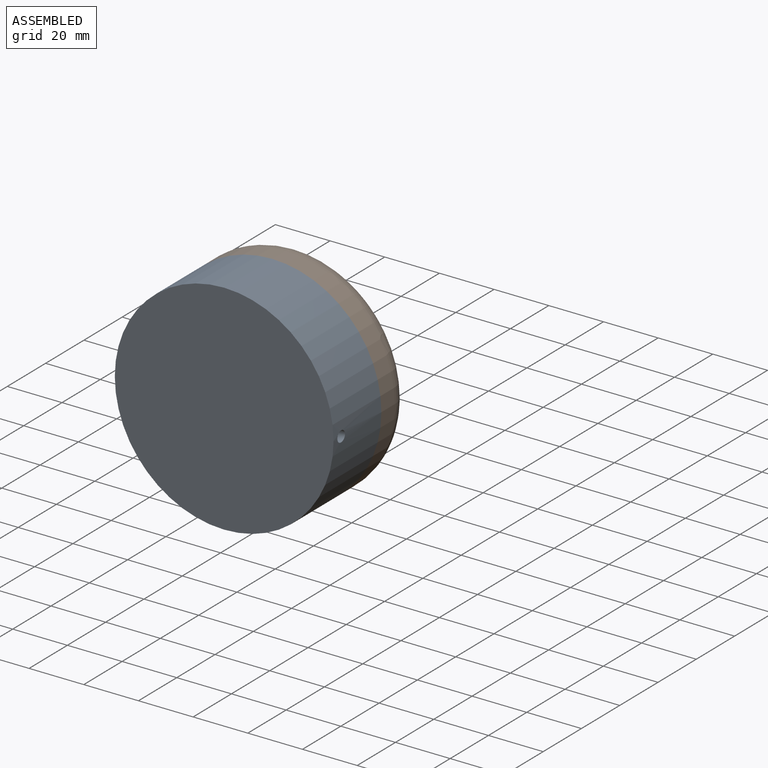
[diagram: assembled view]
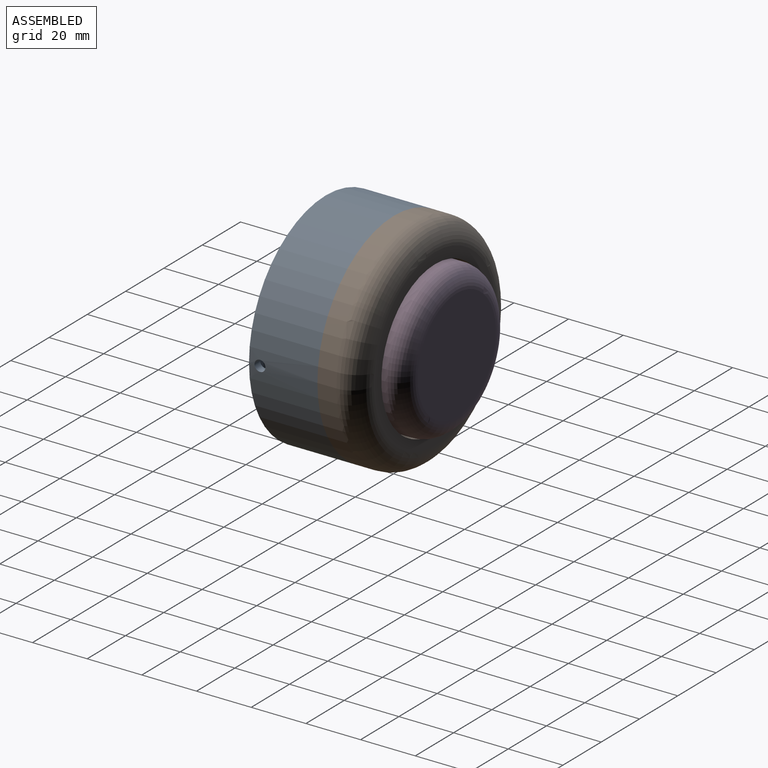
[diagram: assembled view, second angle]
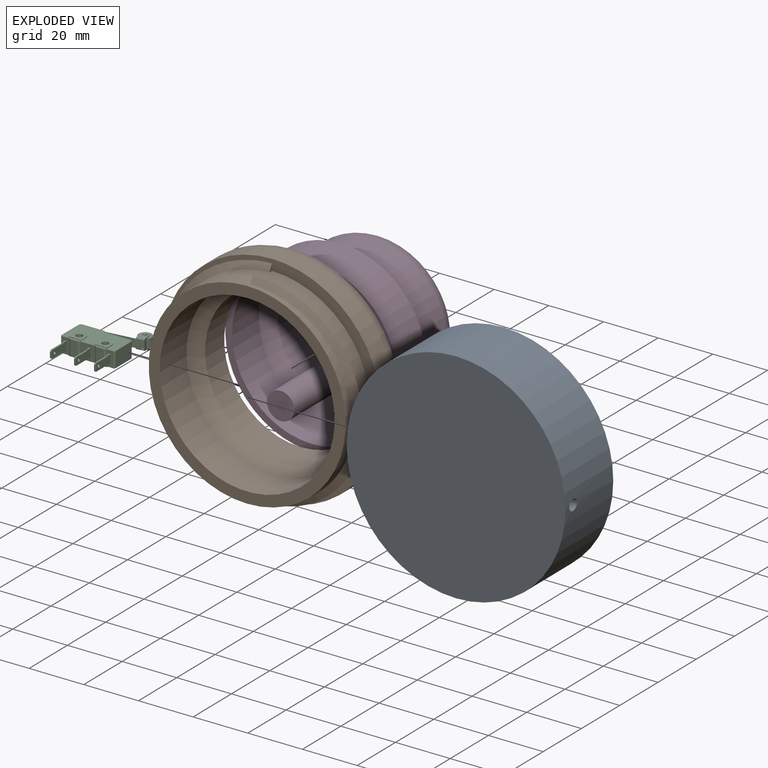
[diagram: exploded view]
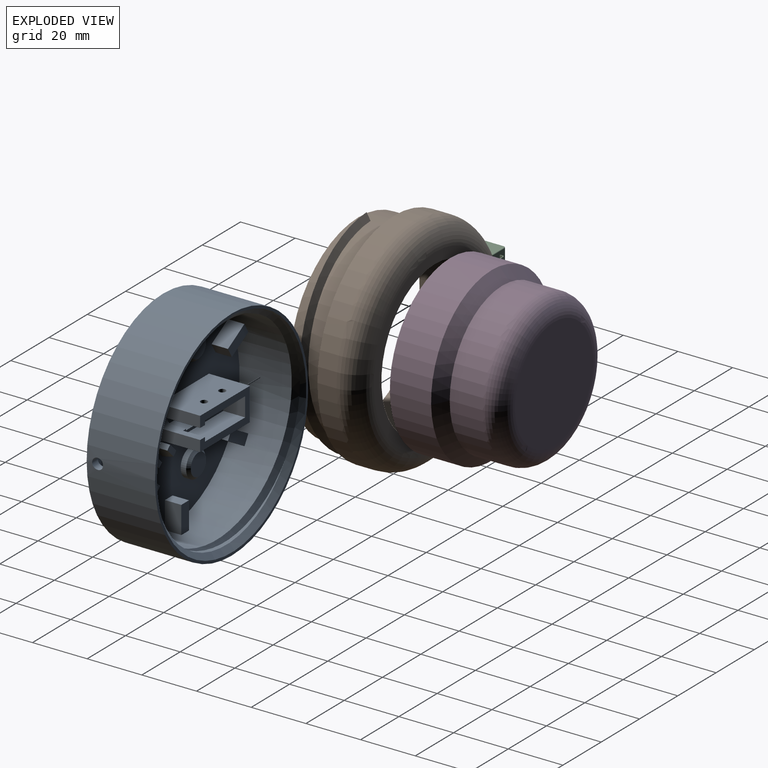
[diagram: exploded view, second angle]
ASSEMBLY  parts=4 mates=5
PART A: 83 faces, bbox 80x80x27.2 mm
  f0: plane 74x73.89mm, normal (0,0,1), area 3465.7mm2, adj f1,f6,f7,f13,f14,f15,f34,f35
  f1: cylinder r=37mm len=74mm, axis (0,0,1), area 3688.9mm2, adj f0,f2,f24,f27,f28,f32,f48,f49
  f2: cylinder r=37mm len=74mm, axis (0,0,1), area 500.2mm2, adj f1,f26,f28
  f3: cylinder r=40mm len=80mm, axis (0,0,-1), area 6270.5mm2, adj f11,f12,f32
  f4: plane 21x7mm, normal (0,0,1), area 51mm2, adj f8,f9,f10,f16,f17,f18,f19,f21
  f5: plane 26x12mm, normal (0,0,1), area 155mm2, adj f6,f7,f8,f13,f14,f15,f16,f17
  f6: plane 15x6mm, normal (0,1,0), area 60.9mm2, adj f0,f5,f14,f29,f31
  f7: plane 15x6mm, normal (0,1,0), area 60.9mm2, adj f0,f5,f13,f29,f30
  f8: plane 8x1.5mm, normal (0,-1,0), area 12mm2, adj f4,f5,f17,f30
  f9: plane 7x2.5mm, normal (0,-1,0), area 4.4mm2, adj f4,f20,f22,f29,f31
  f10: plane 7x2.5mm, normal (0,-1,0), area 4.4mm2, adj f4,f20,f21,f29,f30
  f11: plane 80.04x80.04mm, normal (0,0,1), area 246.4mm2, adj f3,f25,f26,f28
  f12: plane 80x80mm, normal (0,0,-1), area 5026.5mm2, adj f3
  f13: plane 26x15mm, normal (1,0,0), area 380.2mm2, adj f0,f5,f7,f15,f72,f73
  f14: plane 26x15mm, normal (-1,0,0), area 390mm2, adj f0,f5,f6,f15
  f15: plane 15x12mm, normal (0,-1,0), area 180mm2, adj f0,f5,f13,f14
  f16: plane 8x7mm, normal (0,1,0), area 56mm2, adj f4,f5,f17,f19
  f17: plane 21x8mm, normal (-1,0,0), area 158.2mm2, adj f4,f5,f8,f16,f72,f73
  f18: plane 8x1.5mm, normal (0,-1,0), area 12mm2, adj f4,f5,f19,f31
  f19: plane 21x8mm, normal (1,0,0), area 168mm2, adj f4,f5,f16,f18
  f20: plane 18x5mm, normal (0,0,1), area 90mm2, adj f9,f10,f21,f22,f23
  f21: plane 18x7mm, normal (-1,0,0), area 126mm2, adj f4,f10,f20,f23
  f22: plane 18x7mm, normal (1,0,0), area 126mm2, adj f4,f9,f20,f23
  f23: plane 7x5mm, normal (0,1,0), area 35mm2, adj f4,f20,f21,f22
  f24: plane 2.89x2.5mm, normal (0,1,0), area 3.6mm2, adj f1,f26,f27
  f25: plane 1.18x0.68mm, normal (0,-1,0), area 0.2mm2, adj f11,f27,f28
  f26: bspline ~79x79mm, area 590.3mm2, adj f2,f11,f24,f27,f28
  f27: bspline ~79x79mm, area 684.4mm2, adj f1,f24,f25,f26,f28
  f28: cone r=37mm half-angle=45deg, axis (0,0,1), area 562.5mm2, adj f1,f2,f11,f25,f26,f27
  f29: cylinder r=2mm len=4mm, axis (0,1,0), area 25.1mm2, adj f6,f7,f9,f10,f30,f31
  f30: plane 13x4mm, normal (-1,0,0), area 40mm2, adj f4,f5,f7,f8,f10,f29
  f31: plane 13x4mm, normal (1,0,0), area 40mm2, adj f4,f5,f6,f9,f18,f29
  f32: cylinder r=2mm len=4mm, axis (0,-1,0), area 37.4mm2, adj f1,f3
  f33: plane 4.62x4.62mm, normal (0,0,1), area 9.1mm2, adj f34,f35,f36,f37
  f34: plane 6x5.66mm, normal (0.71,-0.71,0), area 37.6mm2, adj f0,f33,f36,f37
  f35: plane 6x5.66mm, normal (-0.71,0.71,0), area 37.6mm2, adj f0,f33,f36,f37
  f36: plane 6x1.41mm, normal (0.71,0.71,0), area 12mm2, adj f0,f33,f34,f35
  f37: plane 6x3.86mm, normal (-0.61,-0.61,0.5), area 13.9mm2, adj f0,f33,f34,f35
  f38: plane 4.62x4.62mm, normal (0,0,1), area 9.1mm2, adj f39,f40,f41,f42
  f39: plane 6x1.41mm, normal (-0.71,-0.71,0), area 12mm2, adj f0,f38,f40,f41
  f40: plane 6x5.66mm, normal (-0.71,0.71,0), area 37.6mm2, adj f0,f38,f39,f42
  f41: plane 6x5.66mm, normal (0.71,-0.71,0), area 37.6mm2, adj f0,f38,f39,f42
  f42: plane 6x3.86mm, normal (0.61,0.61,0.5), area 13.9mm2, adj f0,f38,f40,f41
  f43: plane 4.62x4.62mm, normal (0,0,1), area 9.1mm2, adj f44,f45,f46,f47
  f44: plane 6x1.41mm, normal (0.71,0.71,0), area 12mm2, adj f0,f43,f45,f46
  f45: plane 6x5.66mm, normal (0.71,-0.71,0), area 37.6mm2, adj f0,f43,f44,f47
  f46: plane 6x5.66mm, normal (-0.71,0.71,0), area 37.6mm2, adj f0,f43,f44,f47
  f47: plane 6x3.86mm, normal (-0.61,-0.61,0.5), area 13.9mm2, adj f0,f43,f45,f46
  f48: plane 9.95x6mm, normal (0,-1,0), area 59.7mm2, adj f0,f1,f50,f51
  f49: plane 9.95x6mm, normal (0,1,0), area 59.7mm2, adj f0,f1,f50,f51
  f50: plane 6x4mm, normal (1,0,0), area 24mm2, adj f0,f48,f49,f51
  f51: plane 10x4mm, normal (0,0,1), area 39.9mm2, adj f1,f48,f49,f50
  f52: plane 8.61x6mm, normal (0.87,-0.5,0), area 59.7mm2, adj f0,f1,f54,f55
  f53: plane 8.61x6mm, normal (-0.87,0.5,0), area 59.7mm2, adj f0,f1,f54,f55
  f54: plane 6x3.46mm, normal (0.5,0.87,0), area 24mm2, adj f0,f52,f53,f55
  f55: plane 10.61x8.44mm, normal (0,0,1), area 39.9mm2, adj f1,f52,f53,f54
  f56: plane 8.61x6mm, normal (0.87,0.5,0), area 59.7mm2, adj f0,f1,f58,f59
  f57: plane 8.61x6mm, normal (-0.87,-0.5,0), area 59.7mm2, adj f0,f1,f58,f59
  f58: plane 6x3.46mm, normal (-0.5,0.87,0), area 24mm2, adj f0,f56,f57,f59
  f59: plane 10.61x8.44mm, normal (0,0,1), area 39.9mm2, adj f1,f56,f57,f58
  f60: plane 9.95x6mm, normal (0,1,0), area 59.7mm2, adj f0,f1,f62,f63
  f61: plane 9.95x6mm, normal (0,-1,0), area 59.7mm2, adj f0,f1,f62,f63
  f62: plane 6x4mm, normal (-1,0,0), area 24mm2, adj f0,f60,f61,f63
  f63: plane 10x4mm, normal (0,0,1), area 39.9mm2, adj f1,f60,f61,f62
  f64: plane 8.61x6mm, normal (-0.87,0.5,0), area 59.7mm2, adj f0,f1,f66,f67
  f65: plane 8.61x6mm, normal (0.87,-0.5,0), area 59.7mm2, adj f0,f1,f66,f67
  f66: plane 6x3.46mm, normal (-0.5,-0.87,0), area 24mm2, adj f0,f64,f65,f67
  f67: plane 10.61x8.44mm, normal (0,0,1), area 39.9mm2, adj f1,f64,f65,f66
  f68: plane 8.61x6mm, normal (-0.87,-0.5,0), area 59.7mm2, adj f0,f1,f70,f71
  f69: plane 8.61x6mm, normal (0.87,0.5,0), area 59.7mm2, adj f0,f1,f70,f71
  f70: plane 6x3.46mm, normal (0.5,-0.87,0), area 24mm2, adj f0,f68,f69,f71
  f71: plane 10.61x8.44mm, normal (0,0,1), area 39.9mm2, adj f1,f68,f69,f70
  f72: cylinder r=1.25mm len=2.5mm, axis (1,0,0), area 19.6mm2, adj f13,f17
  f73: cylinder r=1.25mm len=2.5mm, axis (1,0,0), area 19.6mm2, adj f13,f17
  f74: cylinder r=5mm len=10mm, axis (0,0,-1), area 62.8mm2, adj f0,f80
  f75: plane 8x8mm, normal (0,0,1), area 50.3mm2, adj f80
  f76: cylinder r=5mm len=10mm, axis (0,0,-1), area 62.8mm2, adj f0,f81
  f77: plane 8x8mm, normal (0,0,1), area 50.3mm2, adj f81
  f78: cylinder r=5mm len=10mm, axis (0,0,-1), area 62.8mm2, adj f0,f82
  f79: plane 8x8mm, normal (0,0,1), area 50.3mm2, adj f82
  f80: cone r=4mm half-angle=45deg, axis (0,0,-1), area 40mm2, adj f74,f75
  f81: cone r=4mm half-angle=45deg, axis (0,0,-1), area 40mm2, adj f76,f77
  f82: cone r=4mm half-angle=45deg, axis (0,0,-1), area 40mm2, adj f78,f79
PART B: 14 faces, bbox 87.3x87.3x28.7 mm
  f0: plane 80.74x80.74mm, normal (0,0,-1), area 913.3mm2, adj f2,f3,f10,f11
  f1: cylinder r=36mm len=72mm, axis (0,0,1), area 1483.1mm2, adj f2,f9,f12,f13
  f2: cylinder r=36mm len=72mm, axis (0,0,1), area 827.5mm2, adj f0,f1,f10,f11
  f3: cylinder r=40mm len=80mm, axis (0,0,-1), area 1759.3mm2, adj f0,f5
  f4: plane 64x64mm, normal (0,0,1), area 754mm2, adj f5,f7
  f5: torus R=32mm, axis (0,0,1), area 2928.7mm2, adj f3,f4
  f6: cylinder r=32mm len=64mm, axis (0,0,1), area 2814.9mm2, adj f8,f9
  f7: cylinder r=28mm len=56mm, axis (0,0,1), area 1759.3mm2, adj f4,f8
  f8: cone r=28mm half-angle=45deg, axis (0,0,-1), area 1066.3mm2, adj f6,f7
  f9: plane 72x72mm, normal (0,0,-1), area 854.5mm2, adj f1,f6
  f10: plane 2.5x1.44mm, normal (0,1,0), area 1.8mm2, adj f0,f2,f12
  f11: bspline ~77x77mm, area 627.9mm2, adj f0,f2,f12,f13
  f12: bspline ~77x77mm, area 676.4mm2, adj f1,f10,f11,f13
  f13: plane 2.89x2.5mm, normal (0,-1,0), area 3.6mm2, adj f1,f11,f12
PART C: 204 faces, bbox 21.8x27.2x6.4 mm
  f0: sphere r=0.25mm, area 0mm2, adj f1,f196,f197
  f1: cylinder r=0.25mm len=2.79mm, axis (1,0,0), area 1.1mm2, adj f0,f2,f194,f195
  f2: plane 3.57x0.35mm, normal (0,0,-1), area 1.1mm2, adj f1,f3,f191,f192,f193,f196
  f3: torus R=0.5mm, axis (0,0,-1), area 0.1mm2, adj f2,f4,f190,f193,f196
  f4: cylinder r=0.25mm len=2.6mm, axis (1,0,0), area 1mm2, adj f3,f5,f173,f188,f189,f193
  f5: torus R=0.25mm, axis (0,0,1), area 0.3mm2, adj f4,f6,f172,f189
  f6: cylinder r=0.5mm len=5.4mm, axis (0,0,1), area 4.2mm2, adj f5,f7,f171,f173
  f7: plane 8.7x5.4mm, normal (-1,0,0), area 47mm2, adj f6,f8,f170,f172
  f8: cylinder r=1mm len=5.4mm, axis (0,0,-1), area 8.5mm2, adj f7,f9,f124,f169
  f9: torus R=0.75mm, axis (0,0,1), area 0.6mm2, adj f8,f10,f172,f189
  f10: cylinder r=0.25mm len=7.9mm, axis (-1,0,0), area 3.1mm2, adj f9,f11,f124,f189
  f11: sphere r=0.25mm, area 0mm2, adj f10,f12,f123
  f12: cylinder r=0.25mm len=0.73mm, axis (-0.71,0.71,0), area 0.3mm2, adj f11,f13,f122,f189
  f13: plane 5.4x0.55mm, normal (0.71,0.71,0), area 4.2mm2, adj f12,f14,f121,f123
  f14: cylinder r=0.25mm len=5.4mm, axis (0,0,1), area 1.1mm2, adj f13,f15,f120,f122
  f15: torus R=0.5mm, axis (0,0,1), area 0.1mm2, adj f14,f16,f117,f121
  f16: cylinder r=0.25mm len=9mm, axis (1,0,0), area 3.5mm2, adj f15,f17,f117,f120
  f17: torus R=0.75mm, axis (0,0,-1), area 0.6mm2, adj f16,f18,f116,f117
  f18: cylinder r=1mm len=5.4mm, axis (0,0,1), area 8.5mm2, adj f17,f19,f115,f120
  f19: torus R=0.75mm, axis (0,0,1), area 0.6mm2, adj f18,f20,f21,f189
  f20: cylinder r=0.25mm len=9mm, axis (-1,0,0), area 3.5mm2, adj f19,f120,f122,f189
  f21: cylinder r=0.25mm len=8mm, axis (0,1,0), area 3.1mm2, adj f19,f22,f115,f189
  f22: torus R=0.25mm, axis (0,0,1), area 0.3mm2, adj f21,f23,f114,f189
  f23: cylinder r=0.5mm len=5.4mm, axis (0,0,1), area 4.2mm2, adj f22,f24,f113,f115
  f24: plane 5.4x2.7mm, normal (0,-1,0), area 12.6mm2, adj f23,f25,f35,f37,f38,f39,f112,f114
  f25: plane 1.5x0.6mm, normal (0,0,1), area 0.9mm2, adj f24,f26,f35,f38
  f26: plane 0.6x0.2mm, normal (0,-1,0), area 0.1mm2, adj f25,f27,f35,f38
  f27: plane 6x0.6mm, normal (0,0,1), area 3.6mm2, adj f26,f28,f35,f38
  f28: plane 0.6x0.5mm, normal (0,-0.71,0.71), area 0.3mm2, adj f27,f29,f33,f34
  f29: plane 2.8x0.5mm, normal (0.97,-0.26,0), area 1.2mm2, adj f28,f30,f33,f38
  f30: plane 0.6x0.5mm, normal (0,-0.71,-0.71), area 0.3mm2, adj f29,f31,f33,f34
  f31: plane 6x0.6mm, normal (0,0,-1), area 3.6mm2, adj f30,f32,f35,f38
  f32: plane 0.6x0.2mm, normal (0,-1,0), area 0.1mm2, adj f31,f35,f37,f38
  f33: plane 1.8x0.33mm, normal (0,-1,0), area 0.6mm2, adj f28,f29,f30,f34
  f34: plane 2.8x0.5mm, normal (-0.97,-0.26,0), area 1.2mm2, adj f28,f30,f33,f35
  f35: plane 7.5x3.2mm, normal (-1,0,0), area 20.5mm2, adj f24,f25,f26,f27,f31,f32,f34,f36
  f36: cylinder r=0.6mm len=1.2mm, axis (1,0,0), area 2.3mm2, adj f35,f38
  f37: plane 1.5x0.6mm, normal (0,0,-1), area 0.9mm2, adj f24,f32,f35,f38
  f38: plane 7.5x3.2mm, normal (1,0,0), area 20.5mm2, adj f24,f25,f26,f27,f29,f31,f32,f36
  f39: cylinder r=0.25mm len=2.7mm, axis (-1,0,0), area 1mm2, adj f24,f40,f110,f111,f113,f117
  f40: torus R=0.5mm, axis (0,0,1), area 0.1mm2, adj f39,f41,f109,f110,f112
  f41: cylinder r=0.25mm len=0.43mm, axis (-0.71,-0.71,0), area 0.1mm2, adj f40,f42,f108,f109
  f42: plane 5.4x0.25mm, normal (0.71,-0.71,0), area 1.9mm2, adj f41,f43,f107,f112
  f43: cylinder r=0.25mm len=0.43mm, axis (0.71,0.71,0), area 0.1mm2, adj f42,f44,f105,f106
  f44: plane 3.57x0.35mm, normal (0,0,-1), area 1.1mm2, adj f43,f45,f102,f103,f104,f106
  f45: plane 4.53x0.28mm, normal (0,-1,0), area 1.1mm2, adj f44,f46,f48,f100,f101,f102,f106,f114
  f46: plane 2.3x0.26mm, normal (1,0,0), area 0.6mm2, adj f45,f47,f48,f114,f189
  f47: cylinder r=2.25mm len=4.5mm, axis (0,0,1), area 1.8mm2, adj f46,f48,f100,f189
  f48: plane 4.59x4.5mm, normal (0,0,-1), area 13.8mm2, adj f45,f46,f47,f49,f100
  f49: cylinder r=1.2mm len=6.4mm, axis (0,0,1), area 48.3mm2, adj f48,f50
  f50: plane 4.59x4.5mm, normal (0,0,1), area 13.8mm2, adj f49,f51,f99,f110,f111
  f51: plane 2.3x0.26mm, normal (-1,0,0), area 0.6mm2, adj f50,f52,f99,f110,f117
  f52: cylinder r=0.25mm len=5.49mm, axis (-1,0,0), area 2.1mm2, adj f51,f53,f73,f74,f75,f84,f110,f117
  f53: torus R=0.5mm, axis (0,0,1), area 0.1mm2, adj f52,f54,f71,f72,f73
  f54: cylinder r=0.25mm len=0.43mm, axis (-0.71,-0.71,0), area 0.1mm2, adj f53,f55,f57,f71
  f55: plane 5.4x0.25mm, normal (0.71,-0.71,0), area 1.9mm2, adj f54,f56,f72,f191
  f56: cylinder r=0.25mm len=5.4mm, axis (0,0,1), area 1.1mm2, adj f55,f57,f194,f195
  f57: sphere r=0.25mm, area 0mm2, adj f54,f56,f58
  f58: cylinder r=0.25mm len=2.79mm, axis (-1,0,0), area 1.1mm2, adj f57,f59,f71,f194
  f59: sphere r=0.25mm, area 0mm2, adj f58,f60,f197
  f60: cylinder r=0.25mm len=0.43mm, axis (-0.71,0.71,0), area 0.1mm2, adj f59,f61,f62,f71
  f61: plane 5.4x0.25mm, normal (-0.71,-0.71,0), area 1.9mm2, adj f60,f190,f196,f197
  f62: torus R=0.5mm, axis (0,0,1), area 0.1mm2, adj f60,f63,f71,f73,f190
  f63: cylinder r=0.25mm len=2.6mm, axis (-1,0,0), area 1mm2, adj f62,f64,f73,f117,f171,f173
  f64: plane 2.3x0.26mm, normal (-1,0,0), area 0.6mm2, adj f63,f65,f66,f73,f117
  f65: cylinder r=2.25mm len=4.5mm, axis (0,0,1), area 1.8mm2, adj f64,f66,f74,f117
  f66: plane 4.57x4.5mm, normal (0,0,1), area 13.8mm2, adj f64,f65,f67,f73,f74
  f67: cylinder r=1.2mm len=6.4mm, axis (0,0,1), area 48.3mm2, adj f66,f68
  f68: plane 4.57x4.5mm, normal (0,0,-1), area 13.8mm2, adj f67,f69,f70,f188,f193
  f69: plane 2.3x0.26mm, normal (1,0,0), area 0.6mm2, adj f68,f70,f101,f189,f193
  f70: cylinder r=2.25mm len=4.5mm, axis (0,0,1), area 1.8mm2, adj f68,f69,f188,f189
  f71: plane 3.57x0.35mm, normal (0,0,1), area 1.1mm2, adj f53,f54,f58,f60,f62,f73
  f72: cylinder r=0.25mm len=5.4mm, axis (0,0,1), area 1.1mm2, adj f53,f55,f84,f192
  f73: plane 4.54x0.29mm, normal (0,-1,0), area 1.1mm2, adj f52,f53,f62,f63,f64,f66,f71,f74
  f74: plane 2.3x0.26mm, normal (1,0,0), area 0.6mm2, adj f52,f65,f66,f73,f117
  f75: torus R=0.5mm, axis (0,0,1), area 0.1mm2, adj f52,f76,f83,f109,f110
  f76: cylinder r=0.25mm len=0.43mm, axis (-0.71,0.71,0), area 0.1mm2, adj f75,f77,f82,f109
  f77: sphere r=0.25mm, area 0mm2, adj f76,f78,f80
  f78: cylinder r=0.25mm len=2.79mm, axis (-1,0,0), area 1.1mm2, adj f77,f79,f108,f109
  f79: plane 5.4x2.79mm, normal (0,-1,0), area 15.1mm2, adj f78,f80,f104,f107
  f80: cylinder r=0.25mm len=5.4mm, axis (0,0,1), area 1.1mm2, adj f77,f79,f81,f82
  f81: sphere r=0.25mm, area 0mm2, adj f80,f103,f104
  f82: plane 5.4x0.25mm, normal (-0.71,-0.71,0), area 1.9mm2, adj f76,f80,f83,f103
  f83: cylinder r=0.25mm len=5.4mm, axis (0,0,1), area 1.1mm2, adj f75,f82,f84,f102
  f84: plane 5.49x5.4mm, normal (0,-1,0), area 27.7mm2, adj f52,f72,f83,f85,f95,f97,f98,f101
  f85: plane 1.5x0.6mm, normal (0,0,1), area 0.9mm2, adj f84,f86,f95,f98
  f86: plane 0.6x0.2mm, normal (0,-1,0), area 0.1mm2, adj f85,f87,f95,f98
  f87: plane 6x0.6mm, normal (0,0,1), area 3.6mm2, adj f86,f88,f95,f98
  f88: plane 0.6x0.5mm, normal (0,-0.71,0.71), area 0.3mm2, adj f87,f89,f93,f94
  f89: plane 2.8x0.5mm, normal (0.97,-0.26,0), area 1.2mm2, adj f88,f90,f93,f98
  f90: plane 0.6x0.5mm, normal (0,-0.71,-0.71), area 0.3mm2, adj f89,f91,f93,f94
  f91: plane 6x0.6mm, normal (0,0,-1), area 3.6mm2, adj f90,f92,f95,f98
  f92: plane 0.6x0.2mm, normal (0,-1,0), area 0.1mm2, adj f91,f95,f97,f98
  f93: plane 1.8x0.33mm, normal (0,-1,0), area 0.6mm2, adj f88,f89,f90,f94
  f94: plane 2.8x0.5mm, normal (-0.97,-0.26,0), area 1.2mm2, adj f88,f90,f93,f95
  f95: plane 7.5x3.2mm, normal (-1,0,0), area 20.5mm2, adj f84,f85,f86,f87,f91,f92,f94,f96
  f96: cylinder r=0.6mm len=1.2mm, axis (1,0,0), area 2.3mm2, adj f95,f98
  f97: plane 1.5x0.6mm, normal (0,0,-1), area 0.9mm2, adj f84,f92,f95,f98
  f98: plane 7.5x3.2mm, normal (1,0,0), area 20.5mm2, adj f84,f85,f86,f87,f89,f91,f92,f96
  f99: cylinder r=2.25mm len=4.5mm, axis (0,0,1), area 1.8mm2, adj f50,f51,f111,f117
  f100: plane 2.3x0.26mm, normal (-1,0,0), area 0.6mm2, adj f45,f47,f48,f101,f189
  f101: cylinder r=0.25mm len=5.49mm, axis (1,0,0), area 2.1mm2, adj f45,f69,f84,f100,f102,f189,f192,f193
  f102: torus R=0.5mm, axis (0,0,-1), area 0.1mm2, adj f44,f45,f83,f101,f103
  f103: cylinder r=0.25mm len=0.43mm, axis (0.71,-0.71,0), area 0.1mm2, adj f44,f81,f82,f102
  f104: cylinder r=0.25mm len=2.79mm, axis (1,0,0), area 1.1mm2, adj f44,f79,f81,f105
  f105: sphere r=0.25mm, area 0mm2, adj f43,f104,f107
  f106: torus R=0.5mm, axis (0,0,-1), area 0.1mm2, adj f43,f44,f45,f112,f114
  f107: cylinder r=0.25mm len=5.4mm, axis (0,0,1), area 1.1mm2, adj f42,f79,f105,f108
  f108: sphere r=0.25mm, area 0mm2, adj f41,f78,f107
  f109: plane 3.57x0.35mm, normal (0,0,1), area 1.1mm2, adj f40,f41,f75,f76,f78,f110
  f110: plane 4.54x0.29mm, normal (0,-1,0), area 1.1mm2, adj f39,f40,f50,f51,f52,f75,f109,f111
  f111: plane 2.3x0.26mm, normal (1,0,0), area 0.6mm2, adj f39,f50,f99,f110,f117
  f112: cylinder r=0.25mm len=5.4mm, axis (0,0,1), area 1.1mm2, adj f24,f40,f42,f106
  f113: torus R=0.25mm, axis (0,0,1), area 0.3mm2, adj f23,f39,f116,f117
  f114: cylinder r=0.25mm len=2.7mm, axis (1,0,0), area 1mm2, adj f22,f24,f45,f46,f106,f189
  f115: plane 8x5.4mm, normal (1,0,0), area 43.2mm2, adj f18,f21,f23,f116
  f116: cylinder r=0.25mm len=8mm, axis (0,-1,0), area 3.1mm2, adj f17,f113,f115,f117
  f117: plane 19.3x9.7mm, normal (0,0,1), area 143.6mm2, adj f15,f16,f17,f39,f51,f52,f63,f64
  f118: cylinder r=0.25mm len=7.9mm, axis (1,0,0), area 3.1mm2, adj f117,f119,f124,f169
  f119: sphere r=0.25mm, area 0mm2, adj f118,f121,f123
  f120: plane 9x5.4mm, normal (0,1,0), area 48.6mm2, adj f14,f16,f18,f20
  f121: cylinder r=0.25mm len=0.73mm, axis (0.71,-0.71,0), area 0.3mm2, adj f13,f15,f117,f119
  f122: torus R=0.5mm, axis (0,0,-1), area 0.1mm2, adj f12,f14,f20,f189
  f123: cylinder r=0.25mm len=5.4mm, axis (0,0,1), area 1.1mm2, adj f11,f13,f119,f124
  f124: plane 7.9x5.4mm, normal (0,1,0), area 35.7mm2, adj f8,f10,f118,f123,f125,f127,f128,f129
  f125: plane 3.55x0.85mm, normal (1,0,0), area 3mm2, adj f124,f126,f127,f129
  f126: cylinder r=104.05mm len=3.55mm, axis (0,0,1), area 6.2mm2, adj f125,f127,f128,f129
  f127: plane 1.75x0.85mm, normal (0,0,-1), area 1.5mm2, adj f124,f125,f126,f128
  f128: plane 3.55x0.85mm, normal (-1,0,0), area 3mm2, adj f124,f126,f127,f129
  f129: plane 1.76x0.86mm, normal (0,0,1), area 1.5mm2, adj f124,f125,f126,f128
  f130: plane 14.95x3.35mm, normal (0,0,1), area 4mm2, adj f124,f131,f162,f163,f164,f165,f166,f168
  f131: plane 0.45x0.27mm, normal (-1,0,0), area 0.1mm2, adj f130,f132,f161
  f132: cylinder r=0.5mm len=3.02mm, axis (0.99,0.13,0), area 2.2mm2, adj f131,f133,f155,f158,f159,f160,f161,f162
  f133: cylinder r=0.25mm len=2.58mm, axis (1,0,0), area 0.9mm2, adj f132,f134,f153,f160,f161
  f134: plane 3x1.98mm, normal (0,1,0), area 5.9mm2, adj f133,f135,f162,f165
  f135: cylinder r=0.25mm len=2.58mm, axis (-1,0,0), area 0.9mm2, adj f134,f136,f150,f152,f160
  f136: plane 4.41x2.96mm, normal (0,0,1), area 8.7mm2, adj f135,f137,f146,f150,f160
  f137: cylinder r=0.76mm len=1.53mm, axis (0,0,1), area 0.2mm2, adj f136,f138
  f138: plane 3.66x3.66mm, normal (0,0,-1), area 8.3mm2, adj f137,f139,f158,f160
  f139: torus R=1.8mm, axis (0,0,-1), area 2.7mm2, adj f138,f140,f158,f160
  f140: plane 4.87x4.8mm, normal (0,0,-1), area 5.4mm2, adj f139,f141,f158,f160
  f141: cylinder r=2.4mm len=4.8mm, axis (0,0,1), area 47.2mm2, adj f140,f142,f158,f160
  f142: plane 4.87x4.8mm, normal (0,0,1), area 5.4mm2, adj f141,f143,f158,f160
  f143: torus R=1.8mm, axis (0,0,1), area 2.7mm2, adj f142,f144,f158,f160
  f144: plane 3.66x3.66mm, normal (0,0,1), area 7.4mm2, adj f143,f145,f158,f160
  f145: cylinder r=0.76mm len=1.53mm, axis (0,0,1), area 0.2mm2, adj f144,f153
  f146: cylinder r=1.47mm len=2.94mm, axis (0,0,-1), area 1.2mm2, adj f136,f147,f150,f158
  f147: plane 4.41x3.31mm, normal (0,0,-1), area 9.7mm2, adj f146,f148,f150,f152,f158
  f148: cylinder r=0.76mm len=1.53mm, axis (0,0,1), area 0mm2, adj f147,f149
  f149: plane 1.55x1.53mm, normal (0,0,-1), area 2.7mm2, adj f148
  f150: plane 2.98x0.51mm, normal (-0.99,-0.13,0), area 0.8mm2, adj f135,f136,f146,f147,f151,f152
  f151: plane 0.45x0.27mm, normal (-1,0,0), area 0.1mm2, adj f150,f152,f167
  f152: cylinder r=0.5mm len=3.02mm, axis (-0.99,-0.13,0), area 2.2mm2, adj f135,f147,f150,f151,f158,f159,f160,f162
  f153: plane 4.41x2.96mm, normal (0,0,-1), area 9.6mm2, adj f133,f145,f154,f160,f161
  f154: cylinder r=1.47mm len=2.94mm, axis (0,0,-1), area 1.2mm2, adj f153,f155,f158,f161
  f155: plane 4.41x3.31mm, normal (0,0,1), area 8.8mm2, adj f132,f154,f156,f158,f161
  f156: cylinder r=0.76mm len=1.53mm, axis (0,0,1), area 0mm2, adj f155,f157
  f157: plane 1.55x1.53mm, normal (0,0,1), area 1.8mm2, adj f156
  f158: plane 4.04x3.25mm, normal (0.99,0.13,0), area 6.6mm2, adj f132,f138,f139,f140,f141,f142,f143,f144
  f159: plane 3x0.41mm, normal (0.13,-0.99,0), area 1.2mm2, adj f132,f152,f158,f160
  f160: plane 3.54x3.3mm, normal (-1,0,0), area 4.5mm2, adj f132,f133,f135,f136,f138,f139,f140,f141
  f161: plane 2.98x0.51mm, normal (-0.99,-0.13,0), area 0.8mm2, adj f131,f132,f133,f153,f154,f155
  f162: plane 16.46x3mm, normal (0.13,-0.99,0), area 49.8mm2, adj f130,f132,f134,f152,f163,f167
  f163: cylinder r=0.25mm len=3mm, axis (0,0,1), area 1.1mm2, adj f130,f162,f166,f167
  f164: cylinder r=0.5mm len=3mm, axis (0,0,1), area 2.2mm2, adj f130,f165,f167,f168
  f165: plane 14.51x3mm, normal (-0.13,0.99,0), area 43.9mm2, adj f130,f134,f164,f167
  f166: plane 3x1.01mm, normal (1,0,0), area 3mm2, adj f124,f130,f163,f167
  f167: plane 14.95x3.35mm, normal (0,0,-1), area 4mm2, adj f124,f151,f162,f163,f164,f165,f166,f168
  f168: plane 3x1.01mm, normal (-1,0,0), area 3mm2, adj f124,f130,f164,f167
  f169: torus R=0.75mm, axis (0,0,-1), area 0.6mm2, adj f8,f117,f118,f170
  f170: cylinder r=0.25mm len=8.7mm, axis (0,1,0), area 3.4mm2, adj f7,f117,f169,f171
  f171: torus R=0.25mm, axis (0,0,1), area 0.3mm2, adj f6,f63,f117,f170
  f172: cylinder r=0.25mm len=8.7mm, axis (0,-1,0), area 3.4mm2, adj f5,f7,f9,f189
  f173: plane 5.4x2.6mm, normal (0,-1,0), area 12.1mm2, adj f4,f6,f63,f174,f184,f186,f187,f190
  f174: plane 1.5x0.6mm, normal (0,0,1), area 0.9mm2, adj f173,f175,f184,f187
  f175: plane 0.6x0.2mm, normal (0,-1,0), area 0.1mm2, adj f174,f176,f184,f187
  f176: plane 6x0.6mm, normal (0,0,1), area 3.6mm2, adj f175,f177,f184,f187
  f177: plane 0.6x0.5mm, normal (0,-0.71,0.71), area 0.3mm2, adj f176,f178,f182,f183
  f178: plane 2.8x0.5mm, normal (0.97,-0.26,0), area 1.2mm2, adj f177,f179,f182,f187
  f179: plane 0.6x0.5mm, normal (0,-0.71,-0.71), area 0.3mm2, adj f178,f180,f182,f183
  f180: plane 6x0.6mm, normal (0,0,-1), area 3.6mm2, adj f179,f181,f184,f187
  f181: plane 0.6x0.2mm, normal (0,-1,0), area 0.1mm2, adj f180,f184,f186,f187
  f182: plane 1.8x0.33mm, normal (0,-1,0), area 0.6mm2, adj f177,f178,f179,f183
  f183: plane 2.8x0.5mm, normal (-0.97,-0.26,0), area 1.2mm2, adj f177,f179,f182,f184
  f184: plane 7.5x3.2mm, normal (-1,0,0), area 20.5mm2, adj f173,f174,f175,f176,f180,f181,f183,f185
  f185: cylinder r=0.6mm len=1.2mm, axis (1,0,0), area 2.3mm2, adj f184,f187
  f186: plane 1.5x0.6mm, normal (0,0,-1), area 0.9mm2, adj f173,f181,f184,f187
  f187: plane 7.5x3.2mm, normal (1,0,0), area 20.5mm2, adj f173,f174,f175,f176,f178,f180,f181,f185
  f188: plane 2.3x0.26mm, normal (-1,0,0), area 0.6mm2, adj f4,f68,f70,f189,f193
  f189: plane 19.3x9.7mm, normal (0,0,-1), area 143.6mm2, adj f4,f5,f9,f10,f12,f19,f20,f21
  f190: cylinder r=0.25mm len=5.4mm, axis (0,0,1), area 1.1mm2, adj f3,f61,f62,f173
  f191: cylinder r=0.25mm len=0.43mm, axis (0.71,0.71,0), area 0.1mm2, adj f2,f55,f192,f195
  f192: torus R=0.5mm, axis (0,0,-1), area 0.1mm2, adj f2,f72,f101,f191,f193
  f193: plane 4.54x0.29mm, normal (0,-1,0), area 1.1mm2, adj f2,f3,f4,f68,f69,f101,f188,f192
  f194: plane 5.4x2.79mm, normal (0,-1,0), area 15.1mm2, adj f1,f56,f58,f197
  f195: sphere r=0.25mm, area 0mm2, adj f1,f56,f191
  f196: cylinder r=0.25mm len=0.43mm, axis (0.71,-0.71,0), area 0.1mm2, adj f0,f2,f3,f61
  f197: cylinder r=0.25mm len=5.4mm, axis (0,0,1), area 1.1mm2, adj f0,f59,f61,f194
  f198: plane 3x2.95mm, normal (0,0,-1), area 6.8mm2, adj f199
  f199: cylinder r=1.47mm len=2.95mm, axis (0,0,-1), area 5mm2, adj f198,f200
  f200: plane 3x2.95mm, normal (0,0,1), area 10.3mm2, adj f199
  f201: plane 1.73x1.7mm, normal (0,0,1), area 2.3mm2, adj f202
  f202: cylinder r=0.85mm len=1.7mm, axis (0,0,1), area 1.9mm2, adj f201,f203
  f203: plane 1.73x1.7mm, normal (0,0,-1), area 3.4mm2, adj f202
PART D: 23 faces, bbox 63x63x38 mm
  f0: plane 41x40.53mm, normal (0,0,-1), area 1186.6mm2, adj f1,f2,f4,f15,f18,f20,f22
  f1: torus R=20.5mm, axis (0,0,-1), area 277.9mm2, adj f0,f3,f18,f22
  f2: torus R=20.5mm, axis (0,0,-1), area 277.9mm2, adj f0,f5,f20,f22
  f3: cylinder r=25mm len=32.94mm, axis (0,0,1), area 559.7mm2, adj f1,f13,f18,f22
  f4: torus R=20.5mm, axis (0,0,-1), area 277.9mm2, adj f0,f14,f18,f20
  f5: cylinder r=25mm len=38.03mm, axis (0,0,1), area 559.7mm2, adj f2,f13,f20,f22
  f6: cylinder r=31.5mm len=63mm, axis (0,0,1), area 2985.8mm2, adj f7,f10
  f7: cone r=27.5mm half-angle=45deg, axis (0,0,-1), area 1048.5mm2, adj f6,f8
  f8: cylinder r=27.5mm len=55mm, axis (0,0,1), area 2058.6mm2, adj f7,f11
  f9: plane 41x41mm, normal (0,0,1), area 1320.3mm2, adj f11
  f10: plane 63x63mm, normal (0,0,-1), area 475.2mm2, adj f6,f12
  f11: torus R=20.5mm, axis (0,0,-1), area 1724.2mm2, adj f8,f9
  f12: cylinder r=29mm len=58mm, axis (0,0,1), area 2560.1mm2, adj f10,f13
  f13: cone r=25.73mm half-angle=45deg, axis (0,0,-1), area 889.5mm2, adj f3,f5,f12,f14,f18,f20,f22
  f14: cylinder r=25mm len=32.94mm, axis (0,0,1), area 559.7mm2, adj f4,f13,f18,f20
  f15: cylinder r=5mm len=18mm, axis (0,0,1), area 565.5mm2, adj f0,f16
  f16: plane 10x10mm, normal (0,0,-1), area 78.5mm2, adj f15
  f17: plane 10x10mm, normal (0,0,-1), area 78.5mm2, adj f18
  f18: cylinder r=5mm len=35.5mm, axis (0,0,-1), area 887.8mm2, adj f0,f1,f3,f4,f13,f14,f17
  f19: plane 10x10mm, normal (0,0,-1), area 78.5mm2, adj f20
  f20: cylinder r=5mm len=35.5mm, axis (0,0,-1), area 887.8mm2, adj f0,f2,f4,f5,f13,f14,f19
  f21: plane 10x10mm, normal (0,0,-1), area 78.5mm2, adj f22
  f22: cylinder r=5mm len=35.5mm, axis (0,0,-1), area 887.8mm2, adj f0,f1,f2,f3,f5,f13,f21
PLACE A rot(axis=(-0.58,-0.58,-0.58),120deg) t=(-46.24,30.82,-6.49)mm fixed
PLACE B rot(axis=(-0.58,-0.58,-0.58),120deg) t=(-46.24,30.82,-6.49)mm fixed
PLACE C t=(-64.74,39.82,-6.49)mm
PLACE D rot(axis=(-0.58,-0.58,-0.58),120deg) t=(-46.24,30.77,-6.49)mm
MATE slider D.f1 <-> B.f6  axis (0,1,0) through (-46.24,65.82,-6.49)mm
MATE slider B.f6 <-> D.f1  axis (0,1,0) through (-46.24,65.82,-6.49)mm
MATE cylindrical D.f1 <-> B.f6  axis (0,1,0) through (-46.24,65.82,-6.49)mm
MATE planar A.f4 <-> C.f194  axis (0,1,0) through (-55.38,39.82,-6.49)mm
MATE planar C.f7 <-> A.f16  axis (-1,0,0) through (-64.74,45.07,-6.49)mm
